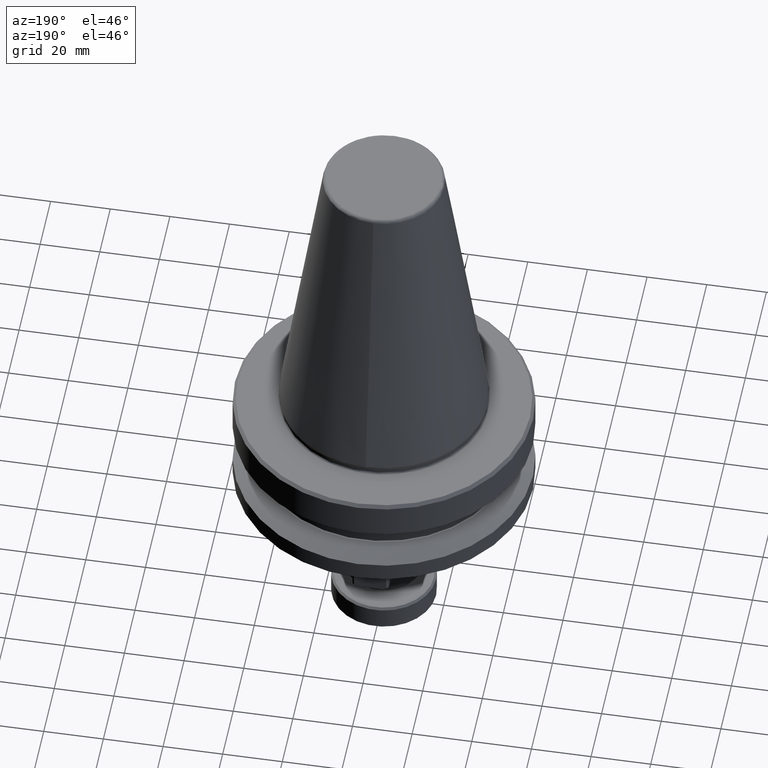
[diagram: clean part render]
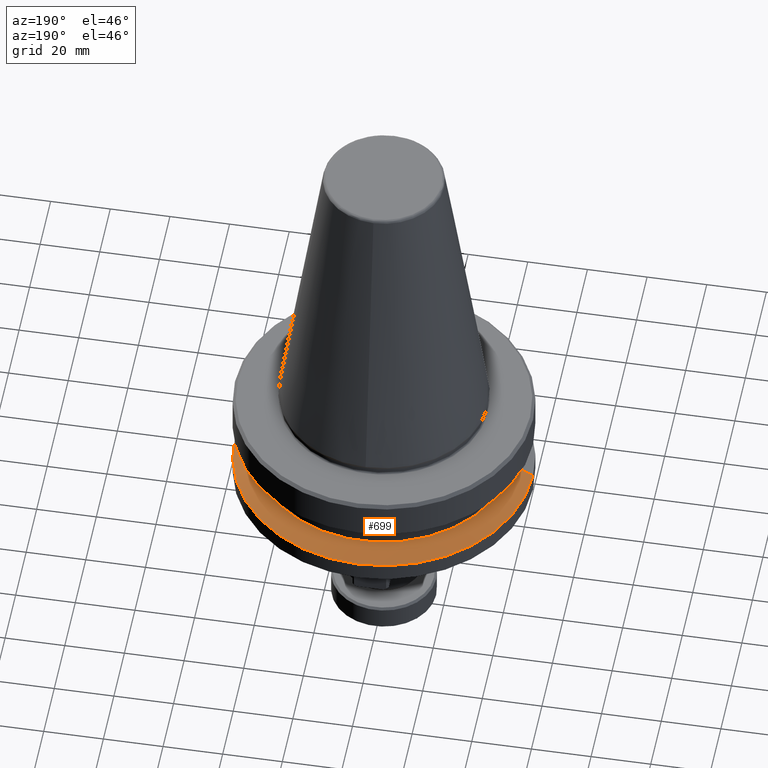
[diagram: same view with one face highlighted and labeled with its STEP entity id]
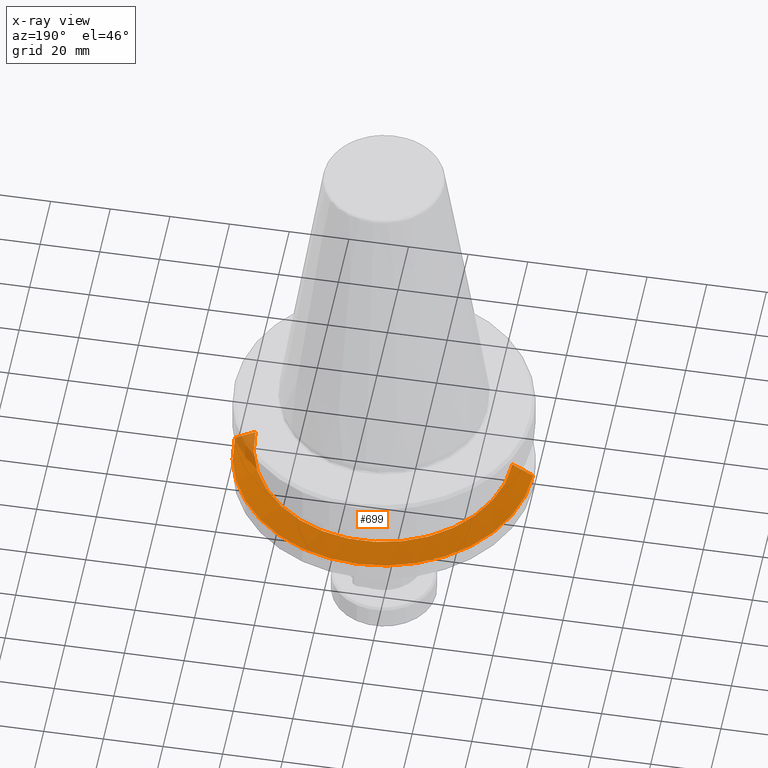
[diagram: x-ray of the same camera — body ghosted, the highlighted face saturated]
A machine part, auxiliary view. The second image highlights one B-rep face of the part: STEP entity #699.
The next image is the same camera in x-ray: the body ghosted, the highlighted face saturated — about 5% of this face is hidden behind the body in this view.
In plain terms, the highlighted conical surface has half-angle 60 deg.
Its self-contained STEP definition (entity closure, byte-faithful):
#60 = DIRECTION ( 'NONE',  ( -1.000000000000000000, 0.0000000000000000000, 0.0000000000000000000 ) ) ;
#116 = AXIS2_PLACEMENT_3D ( 'NONE', #959, #939, #938 ) ;
#119 = CARTESIAN_POINT ( 'NONE',  ( 0.0000000000000000000, 0.0000000000000000000, -30.69977999677325200 ) ) ;
#144 = CIRCLE ( 'NONE', #207, 43.07217782649104300 ) ;
#155 = DIRECTION ( 'NONE',  ( -0.8660254037844386000, 0.0000000000000000000, -0.5000000000000001100 ) ) ;
#195 = EDGE_CURVE ( 'NONE', #1163, #2228, #819, .T. ) ;
#207 = AXIS2_PLACEMENT_3D ( 'NONE', #270, #647, #267 ) ;
#267 = DIRECTION ( 'NONE',  ( -1.000000000000000000, 0.0000000000000000000, 0.0000000000000000000 ) ) ;
#270 = CARTESIAN_POINT ( 'NONE',  ( 0.0000000000000000000, 0.0000000000000000000, -26.69999999999998900 ) ) ;
#306 = CIRCLE ( 'NONE', #116, 50.00000000000000000 ) ;
#415 = EDGE_CURVE ( 'NONE', #2228, #2118, #306, .T. ) ;
#421 = DIRECTION ( 'NONE',  ( 0.0000000000000000000, 0.0000000000000000000, -1.000000000000000000 ) ) ;
#509 = EDGE_CURVE ( 'NONE', #798, #1163, #144, .T. ) ;
#647 = DIRECTION ( 'NONE',  ( 0.0000000000000000000, 0.0000000000000000000, -1.000000000000000000 ) ) ;
#652 = CARTESIAN_POINT ( 'NONE',  ( -43.07217782649104300, 0.0000000000000000000, -26.69999999999998900 ) ) ;
#699 = ADVANCED_FACE ( 'NONE', ( #2651 ), #1541, .T. ) ;
#798 = VERTEX_POINT ( 'NONE', #652 ) ;
#819 = LINE ( 'NONE', #1288, #1950 ) ;
#938 = DIRECTION ( 'NONE',  ( -1.000000000000000000, 0.0000000000000000000, 0.0000000000000000000 ) ) ;
#939 = DIRECTION ( 'NONE',  ( -0.0000000000000000000, -0.0000000000000000000, 1.000000000000000000 ) ) ;
#959 = CARTESIAN_POINT ( 'NONE',  ( 0.0000000000000000000, 0.0000000000000000000, -30.69977999677324500 ) ) ;
#1163 = VERTEX_POINT ( 'NONE', #2619 ) ;
#1288 = CARTESIAN_POINT ( 'NONE',  ( 50.00000000000001400, 6.123233995736767700E-015, -30.69977999677325200 ) ) ;
#1324 = ORIENTED_EDGE ( 'NONE', *, *, #509, .T. ) ;
#1466 = EDGE_CURVE ( 'NONE', #798, #2118, #2304, .T. ) ;
#1541 = CONICAL_SURFACE ( 'NONE', #2671, 50.00000000000001400, 1.047197551196597600 ) ;
#1681 = VECTOR ( 'NONE', #155, 1000.000000000000000 ) ;
#1749 = CARTESIAN_POINT ( 'NONE',  ( 50.00000000000000000, 0.0000000000000000000, -30.69977999677324500 ) ) ;
#1843 = CARTESIAN_POINT ( 'NONE',  ( -50.00000000000000000, 6.123233995736766100E-015, -30.69977999677324500 ) ) ;
#1950 = VECTOR ( 'NONE', #2302, 1000.000000000000000 ) ;
#2118 = VERTEX_POINT ( 'NONE', #1843 ) ;
#2228 = VERTEX_POINT ( 'NONE', #1749 ) ;
#2276 = ORIENTED_EDGE ( 'NONE', *, *, #195, .T. ) ;
#2302 = DIRECTION ( 'NONE',  ( 0.8660254037844386000, 1.060575238724906800E-016, -0.5000000000000001100 ) ) ;
#2304 = LINE ( 'NONE', #2726, #1681 ) ;
#2313 = EDGE_LOOP ( 'NONE', ( #1324, #2276, #2381, #2687 ) ) ;
#2381 = ORIENTED_EDGE ( 'NONE', *, *, #415, .T. ) ;
#2619 = CARTESIAN_POINT ( 'NONE',  ( 43.07217782649104300, 5.699027233244276800E-015, -26.69999999999998900 ) ) ;
#2651 = FACE_OUTER_BOUND ( 'NONE', #2313, .T. ) ;
#2671 = AXIS2_PLACEMENT_3D ( 'NONE', #119, #421, #60 ) ;
#2687 = ORIENTED_EDGE ( 'NONE', *, *, #1466, .F. ) ;
#2726 = CARTESIAN_POINT ( 'NONE',  ( -50.00000000000001400, 0.0000000000000000000, -30.69977999677325200 ) ) ;